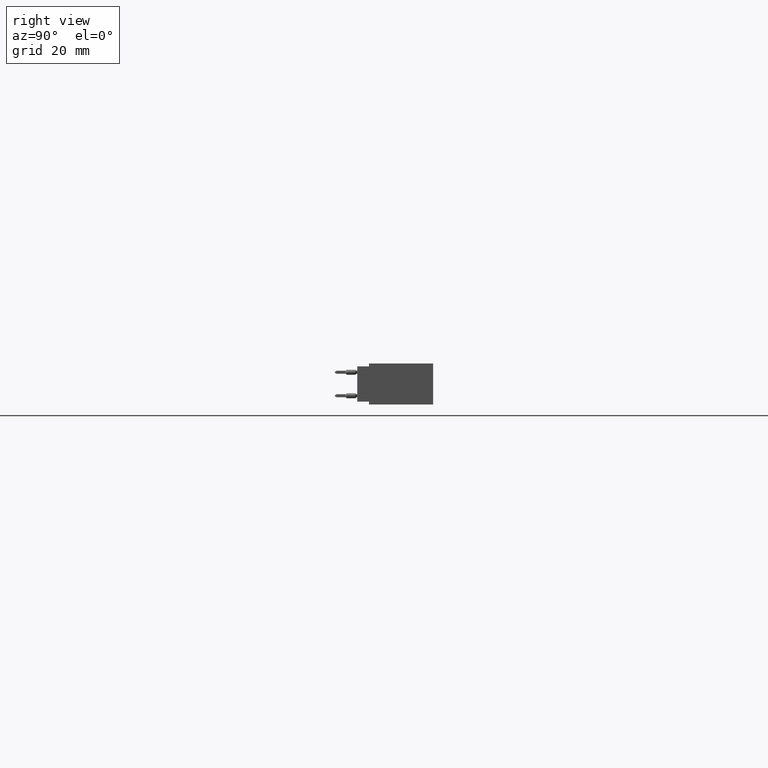
[diagram: clean part render]
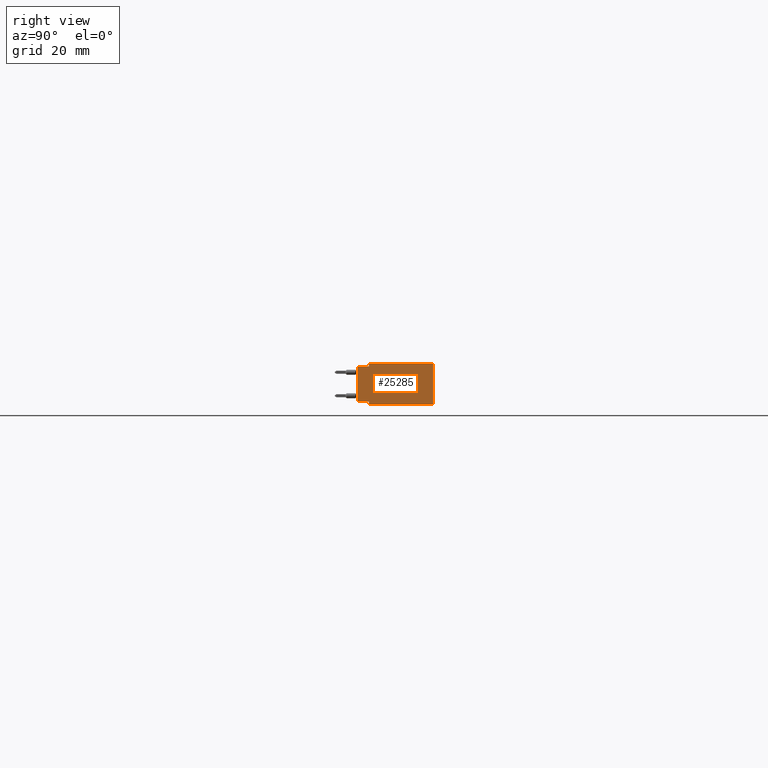
[diagram: same view with one face highlighted and labeled with its STEP entity id]
A machine part, right view. The second image highlights one B-rep face of the part: STEP entity #25285.
In plain terms, the highlighted planar face has unit normal (-1, 0, 0).
Its self-contained STEP definition (entity closure, byte-faithful):
#995 = DIRECTION ( 'NONE',  ( -0.0000000000000000000, -1.000000000000000000, -0.0000000000000000000 ) ) ;
#1475 = VERTEX_POINT ( 'NONE', #10296 ) ;
#2937 = CARTESIAN_POINT ( 'NONE',  ( 6.160000000000000142, 0.6449999999999999067, -0.3499999999999999778 ) ) ;
#3125 = CARTESIAN_POINT ( 'NONE',  ( 6.160000000000000142, 0.6449999999999999067, 0.0000000000000000000 ) ) ;
#4162 = DIRECTION ( 'NONE',  ( 0.0000000000000000000, 0.0000000000000000000, -1.000000000000000000 ) ) ;
#6650 = ORIENTED_EDGE ( 'NONE', *, *, #89548, .T. ) ;
#6719 = EDGE_CURVE ( 'NONE', #28916, #64711, #9934, .T. ) ;
#7720 = ORIENTED_EDGE ( 'NONE', *, *, #67545, .F. ) ;
#8828 = LINE ( 'NONE', #40727, #82898 ) ;
#9934 = LINE ( 'NONE', #15399, #10017 ) ;
#10017 = VECTOR ( 'NONE', #67429, 39.37007874015748143 ) ;
#10296 = CARTESIAN_POINT ( 'NONE',  ( 6.160000000000000142, 0.6449999999999999067, 0.0000000000000000000 ) ) ;
#10544 = CARTESIAN_POINT ( 'NONE',  ( 6.160000000000000142, 0.1000000000000000056, -0.3499999999999999778 ) ) ;
#15012 = VECTOR ( 'NONE', #79927, 39.37007874015748143 ) ;
#15399 = CARTESIAN_POINT ( 'NONE',  ( 6.160000000000000142, 0.1000000000000000056, 0.0000000000000000000 ) ) ;
#17481 = EDGE_CURVE ( 'NONE', #40132, #96004, #72866, .T. ) ;
#18352 = PLANE ( 'NONE',  #46326 ) ;
#25285 = ADVANCED_FACE ( 'NONE', ( #77734 ), #18352, .F. ) ;
#28916 = VERTEX_POINT ( 'NONE', #47966 ) ;
#30974 = DIRECTION ( 'NONE',  ( -0.0000000000000000000, -1.000000000000000000, -0.0000000000000000000 ) ) ;
#31545 = DIRECTION ( 'NONE',  ( 0.0000000000000000000, 0.0000000000000000000, -1.000000000000000000 ) ) ;
#32026 = CARTESIAN_POINT ( 'NONE',  ( 6.160000000000000142, 0.6449999999999999067, 0.0000000000000000000 ) ) ;
#33549 = CARTESIAN_POINT ( 'NONE',  ( 6.160000000000000142, 0.6449999999999999067, -0.3499999999999999778 ) ) ;
#34138 = CARTESIAN_POINT ( 'NONE',  ( 6.160000000000000142, 0.0000000000000000000, 0.0000000000000000000 ) ) ;
#38592 = VERTEX_POINT ( 'NONE', #83861 ) ;
#38973 = VERTEX_POINT ( 'NONE', #33549 ) ;
#40132 = VERTEX_POINT ( 'NONE', #47932 ) ;
#40727 = CARTESIAN_POINT ( 'NONE',  ( 6.160000000000000142, 0.0000000000000000000, -0.02500000000000000486 ) ) ;
#42407 = DIRECTION ( 'NONE',  ( 0.0000000000000000000, 1.000000000000000000, 0.0000000000000000000 ) ) ;
#43135 = LINE ( 'NONE', #64724, #15012 ) ;
#43182 = VECTOR ( 'NONE', #42407, 39.37007874015748143 ) ;
#44002 = EDGE_CURVE ( 'NONE', #1475, #28916, #43135, .T. ) ;
#46277 = LINE ( 'NONE', #32026, #78820 ) ;
#46326 = AXIS2_PLACEMENT_3D ( 'NONE', #3125, #48308, #69894 ) ;
#47022 = ORIENTED_EDGE ( 'NONE', *, *, #61317, .T. ) ;
#47590 = LINE ( 'NONE', #2937, #69193 ) ;
#47932 = CARTESIAN_POINT ( 'NONE',  ( 6.160000000000000142, 0.0000000000000000000, -0.02500000000000000486 ) ) ;
#47966 = CARTESIAN_POINT ( 'NONE',  ( 6.160000000000000142, 0.1000000000000000056, 0.0000000000000000000 ) ) ;
#48308 = DIRECTION ( 'NONE',  ( -1.000000000000000000, 0.0000000000000000000, 0.0000000000000000000 ) ) ;
#49605 = ORIENTED_EDGE ( 'NONE', *, *, #6719, .T. ) ;
#51905 = ORIENTED_EDGE ( 'NONE', *, *, #44002, .T. ) ;
#52154 = EDGE_LOOP ( 'NONE', ( #49605, #47022, #56116, #53842, #6650, #89476, #7720, #51905 ) ) ;
#52767 = DIRECTION ( 'NONE',  ( -0.0000000000000000000, -0.0000000000000000000, -1.000000000000000000 ) ) ;
#53842 = ORIENTED_EDGE ( 'NONE', *, *, #70508, .T. ) ;
#56116 = ORIENTED_EDGE ( 'NONE', *, *, #17481, .T. ) ;
#56276 = VECTOR ( 'NONE', #4162, 39.37007874015748143 ) ;
#57621 = LINE ( 'NONE', #93927, #43182 ) ;
#61317 = EDGE_CURVE ( 'NONE', #64711, #40132, #8828, .T. ) ;
#64711 = VERTEX_POINT ( 'NONE', #89752 ) ;
#64724 = CARTESIAN_POINT ( 'NONE',  ( 6.160000000000000142, 0.6449999999999999067, 0.0000000000000000000 ) ) ;
#67429 = DIRECTION ( 'NONE',  ( 0.0000000000000000000, 0.0000000000000000000, -1.000000000000000000 ) ) ;
#67545 = EDGE_CURVE ( 'NONE', #1475, #38973, #46277, .T. ) ;
#68918 = LINE ( 'NONE', #82196, #91155 ) ;
#69193 = VECTOR ( 'NONE', #30974, 39.37007874015748143 ) ;
#69894 = DIRECTION ( 'NONE',  ( 0.0000000000000000000, 0.0000000000000000000, 1.000000000000000000 ) ) ;
#70508 = EDGE_CURVE ( 'NONE', #96004, #38592, #57621, .T. ) ;
#72866 = LINE ( 'NONE', #34138, #56276 ) ;
#76099 = EDGE_CURVE ( 'NONE', #38973, #94375, #47590, .T. ) ;
#77734 = FACE_OUTER_BOUND ( 'NONE', #52154, .T. ) ;
#78820 = VECTOR ( 'NONE', #31545, 39.37007874015748143 ) ;
#79927 = DIRECTION ( 'NONE',  ( -0.0000000000000000000, -1.000000000000000000, -0.0000000000000000000 ) ) ;
#82196 = CARTESIAN_POINT ( 'NONE',  ( 6.160000000000000142, 0.1000000000000000056, -0.3499999999999999778 ) ) ;
#82898 = VECTOR ( 'NONE', #995, 39.37007874015748143 ) ;
#83861 = CARTESIAN_POINT ( 'NONE',  ( 6.160000000000000142, 0.1000000000000000056, -0.3249999999999999556 ) ) ;
#89476 = ORIENTED_EDGE ( 'NONE', *, *, #76099, .F. ) ;
#89548 = EDGE_CURVE ( 'NONE', #38592, #94375, #68918, .T. ) ;
#89752 = CARTESIAN_POINT ( 'NONE',  ( 6.160000000000000142, 0.1000000000000000056, -0.02500000000000000486 ) ) ;
#89998 = CARTESIAN_POINT ( 'NONE',  ( 6.160000000000000142, 0.0000000000000000000, -0.3249999999999999556 ) ) ;
#91155 = VECTOR ( 'NONE', #52767, 39.37007874015748143 ) ;
#93927 = CARTESIAN_POINT ( 'NONE',  ( 6.160000000000000142, 0.0000000000000000000, -0.3249999999999999556 ) ) ;
#94375 = VERTEX_POINT ( 'NONE', #10544 ) ;
#96004 = VERTEX_POINT ( 'NONE', #89998 ) ;